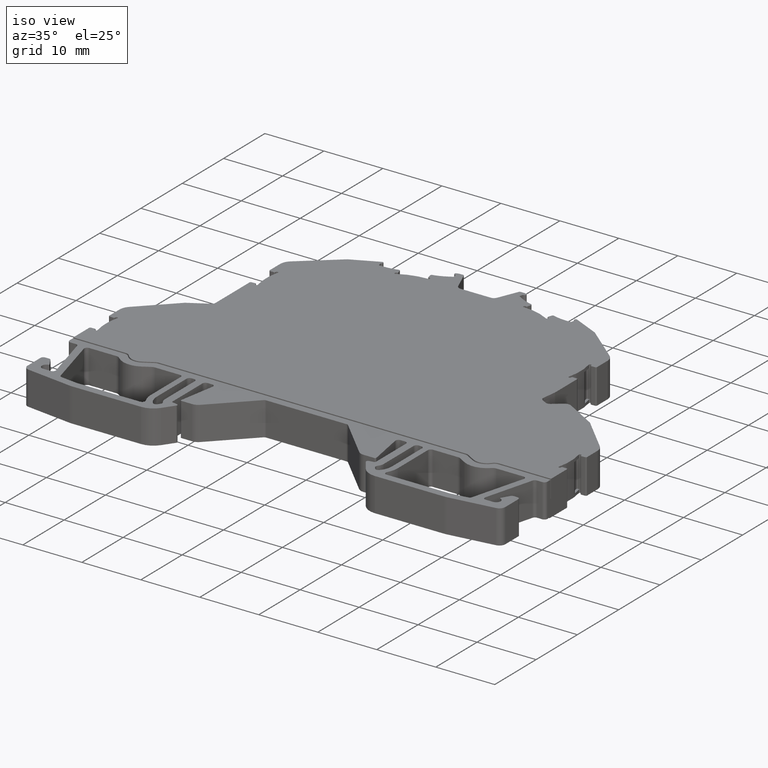
[diagram: clean part render]
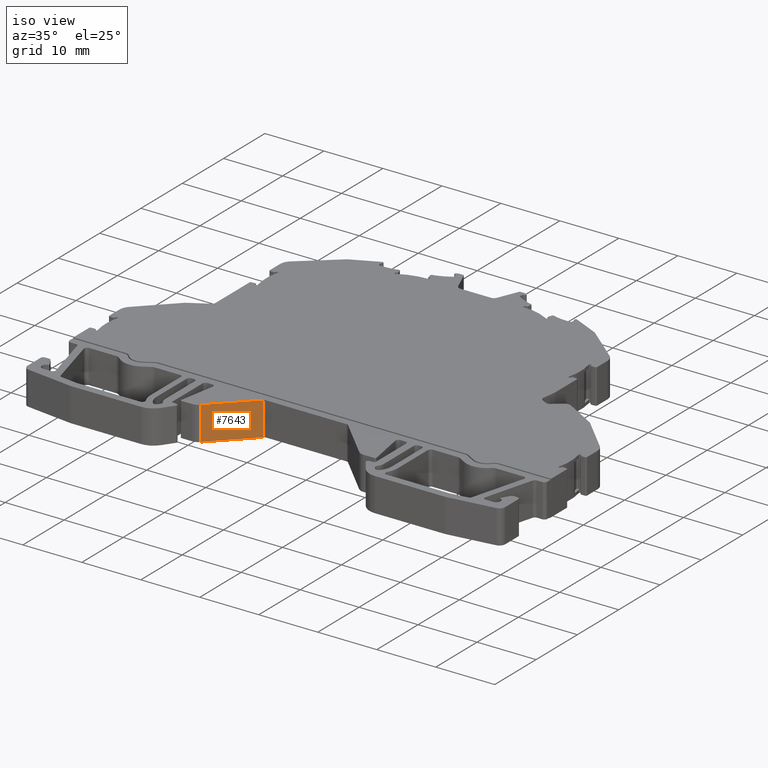
[diagram: same view with one face highlighted and labeled with its STEP entity id]
A machine part, iso view. The second image highlights one B-rep face of the part: STEP entity #7643.
In plain terms, the highlighted planar face has unit normal (-0.7071, 0.7071, 0).
Its self-contained STEP definition (entity closure, byte-faithful):
#152 = EDGE_LOOP ( 'NONE', ( #6941, #6951, #6978, #6960 ) ) ;
#1953 = VERTEX_POINT ( 'NONE', #12864 ) ;
#2856 = VERTEX_POINT ( 'NONE', #4097 ) ;
#4097 = CARTESIAN_POINT ( 'NONE',  ( 472.7993868080169500, -351.0474766623120200, -54.14999999999999900 ) ) ;
#6941 = ORIENTED_EDGE ( 'NONE', *, *, #13820, .F. ) ;
#6951 = ORIENTED_EDGE ( 'NONE', *, *, #13777, .F. ) ;
#6960 = ORIENTED_EDGE ( 'NONE', *, *, #13799, .T. ) ;
#6978 = ORIENTED_EDGE ( 'NONE', *, *, #13817, .T. ) ;
#7643 = ADVANCED_FACE ( 'NONE', ( #16673 ), #16646, .F. ) ;
#9501 = VECTOR ( 'NONE', #10697, 1000.000000000000000 ) ;
#9530 = VECTOR ( 'NONE', #10736, 1000.000000000000000 ) ;
#9551 = VECTOR ( 'NONE', #10788, 1000.000000000000100 ) ;
#9559 = VECTOR ( 'NONE', #10797, 999.9999999999998900 ) ;
#10074 = AXIS2_PLACEMENT_3D ( 'NONE', #16686, #16661, #16644 ) ;
#10697 = DIRECTION ( 'NONE',  ( 0.0000000000000000000, 0.0000000000000000000, -1.000000000000000000 ) ) ;
#10701 = LINE ( 'NONE', #10743, #9530 ) ;
#10708 = LINE ( 'NONE', #10710, #9501 ) ;
#10710 = CARTESIAN_POINT ( 'NONE',  ( 479.1054307302820200, -344.7414381843975100, -54.50000000000000000 ) ) ;
#10736 = DIRECTION ( 'NONE',  ( 0.0000000000000000000, 0.0000000000000000000, -1.000000000000000000 ) ) ;
#10743 = CARTESIAN_POINT ( 'NONE',  ( 472.7993868080169500, -351.0474766623120200, -54.50000000000000000 ) ) ;
#10786 = LINE ( 'NONE', #10804, #9559 ) ;
#10788 = DIRECTION ( 'NONE',  ( -0.7071070864284472200, -0.7071064759445161400, 0.0000000000000000000 ) ) ;
#10797 = DIRECTION ( 'NONE',  ( -0.7071070864284754200, -0.7071064759444879400, 0.0000000000000000000 ) ) ;
#10804 = CARTESIAN_POINT ( 'NONE',  ( 479.1054307302820200, -344.7414381843975100, -59.85000000000000100 ) ) ;
#10807 = LINE ( 'NONE', #10809, #9551 ) ;
#10809 = CARTESIAN_POINT ( 'NONE',  ( 510.1357979866484100, -313.7110977182316000, -54.14999999999999900 ) ) ;
#11740 = CARTESIAN_POINT ( 'NONE',  ( 472.7993868080169500, -351.0474766623120200, -59.85000000000000100 ) ) ;
#11764 = CARTESIAN_POINT ( 'NONE',  ( 479.1054307302820200, -344.7414381843975100, -59.85000000000000100 ) ) ;
#12864 = CARTESIAN_POINT ( 'NONE',  ( 479.1054307302820200, -344.7414381843975100, -54.14999999999999900 ) ) ;
#13777 = EDGE_CURVE ( 'NONE', #1953, #17216, #10708, .T. ) ;
#13799 = EDGE_CURVE ( 'NONE', #2856, #17211, #10701, .T. ) ;
#13817 = EDGE_CURVE ( 'NONE', #1953, #2856, #10807, .T. ) ;
#13820 = EDGE_CURVE ( 'NONE', #17216, #17211, #10786, .T. ) ;
#16644 = DIRECTION ( 'NONE',  ( -0.7071070864284472200, -0.7071064759445161400, 0.0000000000000000000 ) ) ;
#16646 = PLANE ( 'NONE',  #10074 ) ;
#16661 = DIRECTION ( 'NONE',  ( -0.7071064759445161400, 0.7071070864284472200, 0.0000000000000000000 ) ) ;
#16673 = FACE_OUTER_BOUND ( 'NONE', #152, .T. ) ;
#16686 = CARTESIAN_POINT ( 'NONE',  ( 479.1054307302820200, -344.7414381843975100, -54.50000000000000000 ) ) ;
#17211 = VERTEX_POINT ( 'NONE', #11740 ) ;
#17216 = VERTEX_POINT ( 'NONE', #11764 ) ;